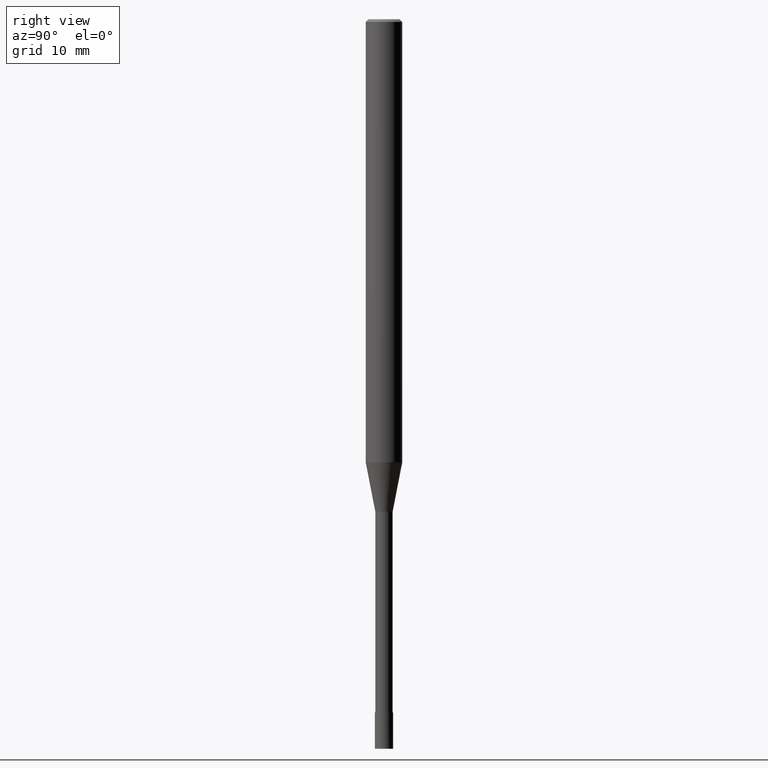
[diagram: clean part render]
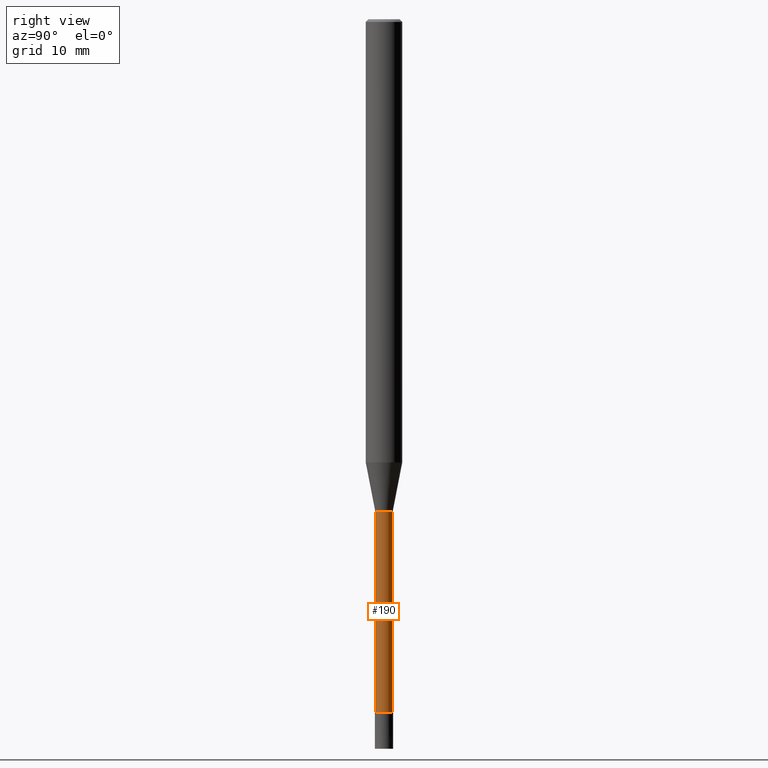
[diagram: same view with one face highlighted and labeled with its STEP entity id]
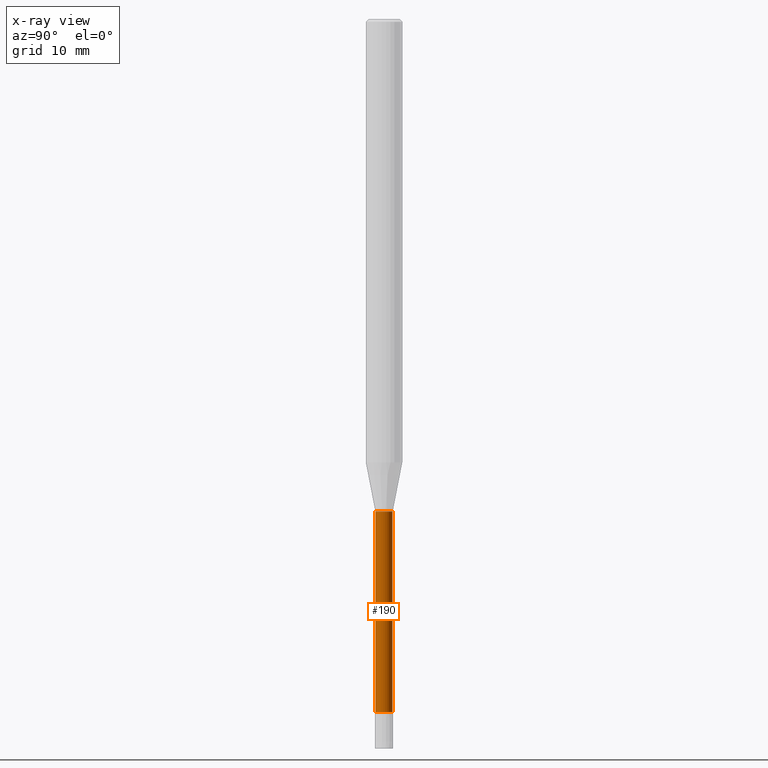
[diagram: x-ray of the same camera — body ghosted, the highlighted face saturated]
A machine part, right view. The second image highlights one B-rep face of the part: STEP entity #190.
The next image is the same camera in x-ray: the body ghosted, the highlighted face saturated — about 0% of this face is hidden behind the body in this view.
In plain terms, the highlighted cylindrical surface (edge-blend (fillet) strip) has radius 0.9499 mm, axis along (-0, -0, 1).
Its self-contained STEP definition (entity closure, byte-faithful):
#106=VERTEX_POINT('',#245);
#118=VERTEX_POINT('',#258);
#138=EDGE_CURVE('',#186,#106,#281,.T.);
#152=EDGE_CURVE('',#106,#206,#298,.T.);
#186=VERTEX_POINT('',#336);
#190=ADVANCED_FACE('',(#340),#341,.T.);
#196=EDGE_CURVE('',#118,#206,#348,.T.);
#204=EDGE_CURVE('',#118,#186,#356,.T.);
#206=VERTEX_POINT('',#358);
#245=CARTESIAN_POINT('',(1.16331480581357E-016,-0.94995,-76.0));
#258=CARTESIAN_POINT('',(0.0,0.94995,-54.0));
#281=CIRCLE('',#437,0.94995);
#298=LINE('',#456,#457);
#336=CARTESIAN_POINT('',(0.0,0.94995,-76.0));
#340=FACE_OUTER_BOUND('',#512,.T.);
#341=CYLINDRICAL_SURFACE('',#513,0.94995);
#348=CIRCLE('',#522,0.94995);
#356=LINE('',#534,#535);
#358=CARTESIAN_POINT('',(1.16331480581357E-016,-0.94995,-54.0));
#437=AXIS2_PLACEMENT_3D('',#602,#603,#604);
#456=CARTESIAN_POINT('',(1.16331480581357E-016,-0.94995,-65.0));
#457=VECTOR('',#624,1.0);
#512=EDGE_LOOP('',(#680,#681,#682,#683));
#513=AXIS2_PLACEMENT_3D('',#684,#685,#686);
#522=AXIS2_PLACEMENT_3D('',#698,#699,#700);
#534=CARTESIAN_POINT('',(-1.16331480581357E-016,0.94995,-65.0));
#535=VECTOR('',#705,1.0);
#602=CARTESIAN_POINT('',(0.0,0.0,-76.0));
#603=DIRECTION('',(0.0,0.0,-1.0));
#604=DIRECTION('',(0.0,1.0,0.0));
#624=DIRECTION('',(-0.0,-0.0,1.0));
#680=ORIENTED_EDGE('',*,*,#204,.F.);
#681=ORIENTED_EDGE('',*,*,#196,.T.);
#682=ORIENTED_EDGE('',*,*,#152,.F.);
#683=ORIENTED_EDGE('',*,*,#138,.F.);
#684=CARTESIAN_POINT('',(0.0,0.0,-65.0));
#685=DIRECTION('',(-0.0,-0.0,1.0));
#686=DIRECTION('',(0.0,1.0,0.0));
#698=CARTESIAN_POINT('',(0.0,0.0,-54.0));
#699=DIRECTION('',(0.0,0.0,-1.0));
#700=DIRECTION('',(0.0,1.0,0.0));
#705=DIRECTION('',(0.0,0.0,-1.0));